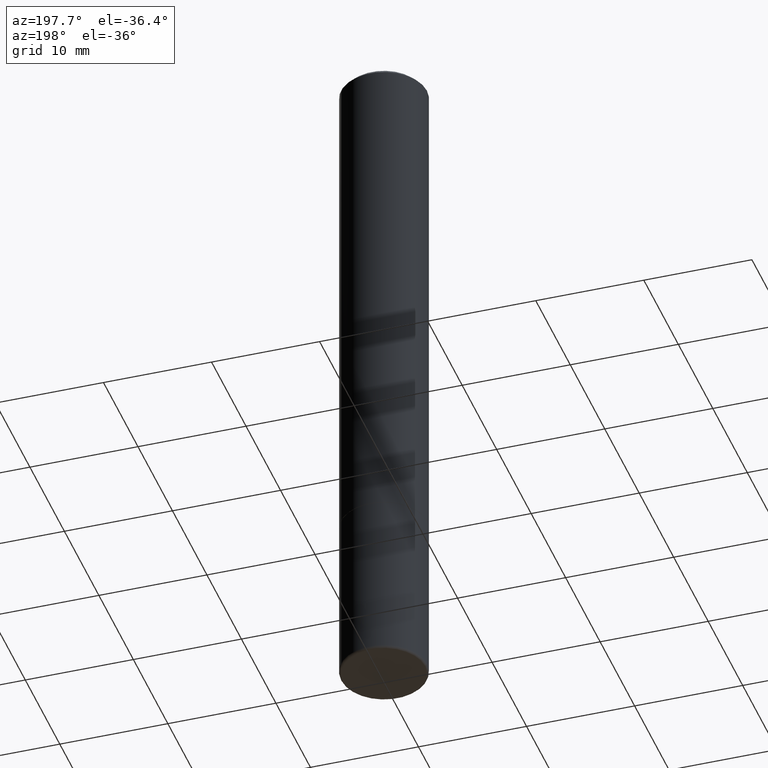
[diagram: clean part render]
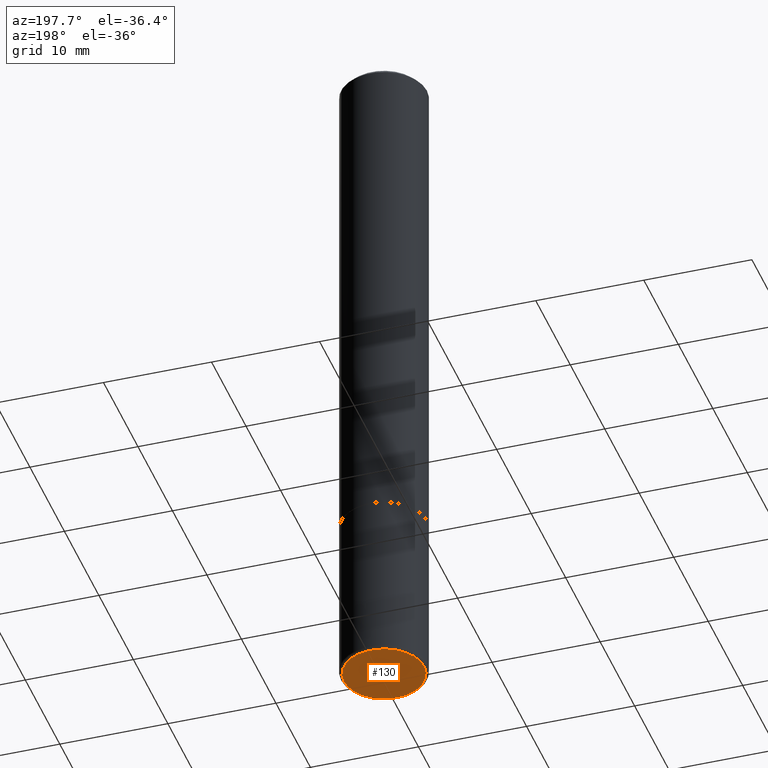
[diagram: same view with one face highlighted and labeled with its STEP entity id]
A machine part, auxiliary view. The second image highlights one B-rep face of the part: STEP entity #130.
In plain terms, the highlighted planar face has unit normal (0, -0, -1).
Its self-contained STEP definition (entity closure, byte-faithful):
#13 = EDGE_LOOP ( 'NONE', ( #84, #106 ) ) ;
#43 = VERTEX_POINT ( 'NONE', #119 ) ;
#46 = EDGE_CURVE ( 'NONE', #262, #43, #203, .T. ) ;
#84 = ORIENTED_EDGE ( 'NONE', *, *, #46, .F. ) ;
#91 = CARTESIAN_POINT ( 'NONE',  ( 6.113672015462840371E-29, -8.728703347107863365E-15, -2.499999999999999556 ) ) ;
#96 = DIRECTION ( 'NONE',  ( -2.445468806185136597E-29, 3.491481338843145583E-15, 1.000000000000000000 ) ) ;
#106 = ORIENTED_EDGE ( 'NONE', *, *, #237, .F. ) ;
#109 = CIRCLE ( 'NONE', #126, 0.1462500000000000189 ) ;
#119 = CARTESIAN_POINT ( 'NONE',  ( -0.1462500000000000189, -7.636550052576496041E-15, -2.499999999999999556 ) ) ;
#125 = CARTESIAN_POINT ( 'NONE',  ( 1.263551563285417854E-28, 6.109479132827826125E-16, -2.500000000000000000 ) ) ;
#126 = AXIS2_PLACEMENT_3D ( 'NONE', #368, #210, #401 ) ;
#130 = ADVANCED_FACE ( 'NONE', ( #151 ), #281, .T. ) ;
#131 = AXIS2_PLACEMENT_3D ( 'NONE', #91, #96, #348 ) ;
#151 = FACE_OUTER_BOUND ( 'NONE', #13, .T. ) ;
#169 = CARTESIAN_POINT ( 'NONE',  ( 0.1462500000000000189, -9.749961638719478451E-15, -2.499999999999999556 ) ) ;
#203 = CIRCLE ( 'NONE', #131, 0.1462500000000000189 ) ;
#210 = DIRECTION ( 'NONE',  ( -2.445468806185136597E-29, 3.491481338843145583E-15, 1.000000000000000000 ) ) ;
#237 = EDGE_CURVE ( 'NONE', #43, #262, #109, .T. ) ;
#251 = DIRECTION ( 'NONE',  ( 2.438088387897960049E-29, -3.491481338843145188E-15, -1.000000000000000000 ) ) ;
#257 = DIRECTION ( 'NONE',  ( -1.000000000000000000, 6.982962677686265922E-15, -4.876176775795935793E-29 ) ) ;
#262 = VERTEX_POINT ( 'NONE', #169 ) ;
#281 = PLANE ( 'NONE',  #301 ) ;
#301 = AXIS2_PLACEMENT_3D ( 'NONE', #125, #251, #257 ) ;
#348 = DIRECTION ( 'NONE',  ( 1.000000000000000000, -6.982962677686264344E-15, 0.000000000000000000 ) ) ;
#368 = CARTESIAN_POINT ( 'NONE',  ( 6.113672015462840371E-29, -8.728703347107863365E-15, -2.499999999999999556 ) ) ;
#401 = DIRECTION ( 'NONE',  ( 1.000000000000000000, -6.982962677686264344E-15, 0.000000000000000000 ) ) ;